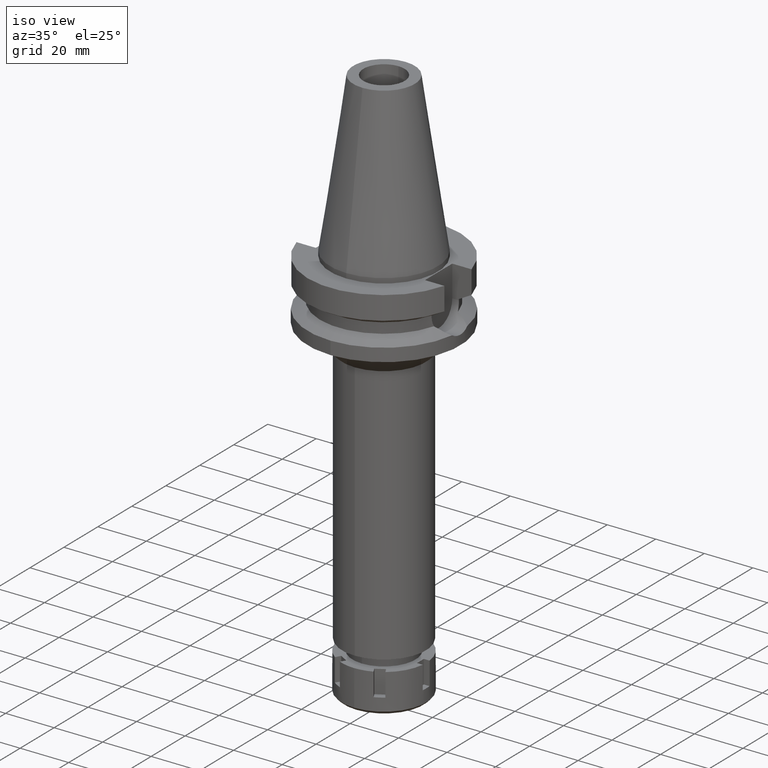
[diagram: clean part render]
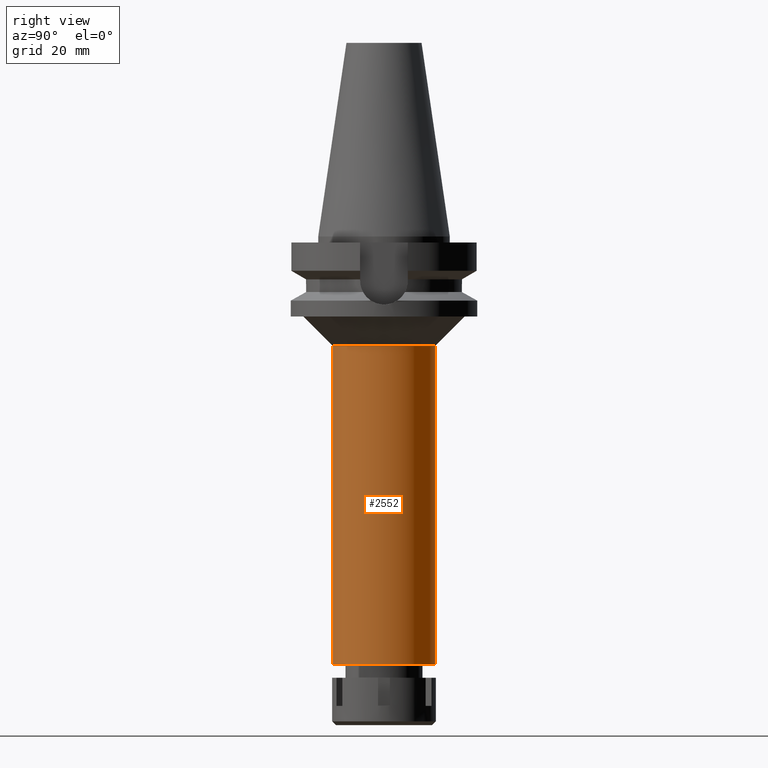
[diagram: tour spotlight — one face highlighted and labeled with its STEP entity id]
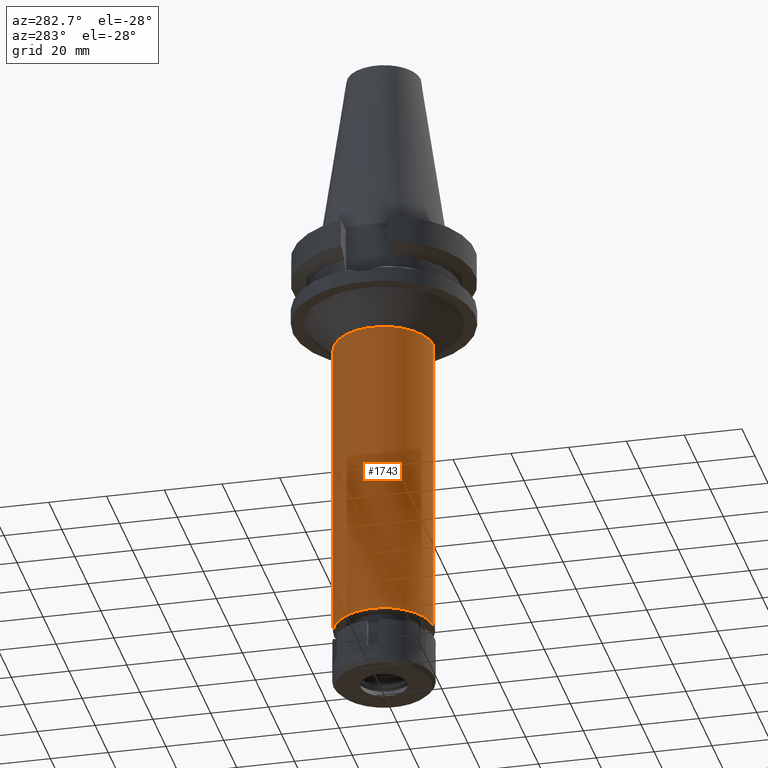
[diagram: tour spotlight — one face highlighted and labeled with its STEP entity id]
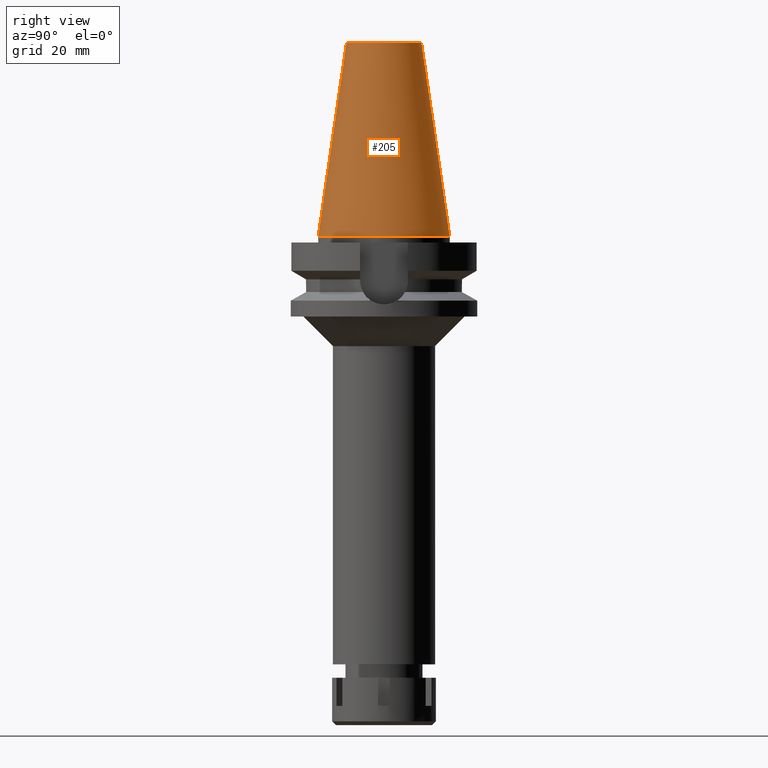
[diagram: tour spotlight — one face highlighted and labeled with its STEP entity id]
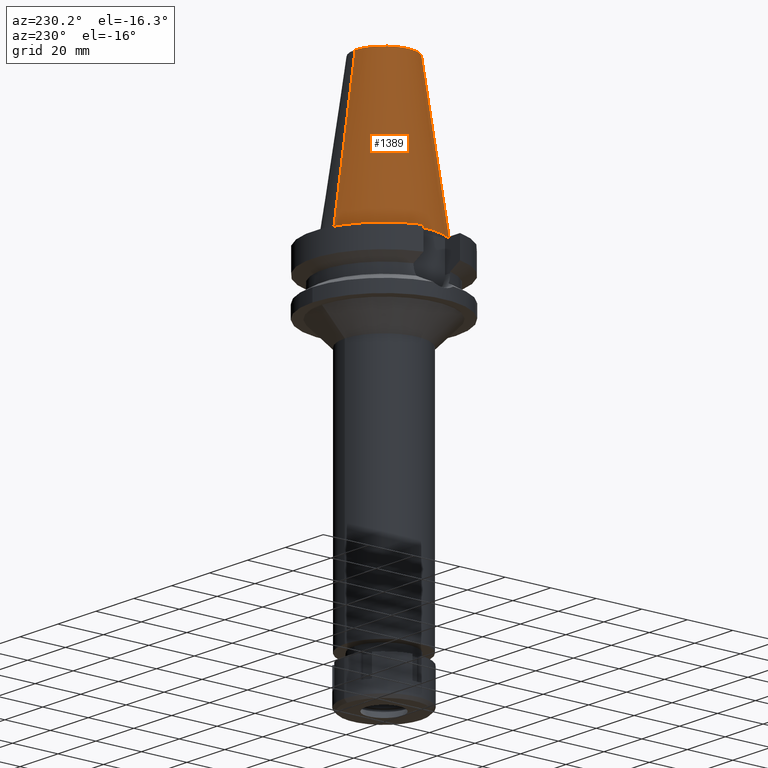
[diagram: tour spotlight — one face highlighted and labeled with its STEP entity id]
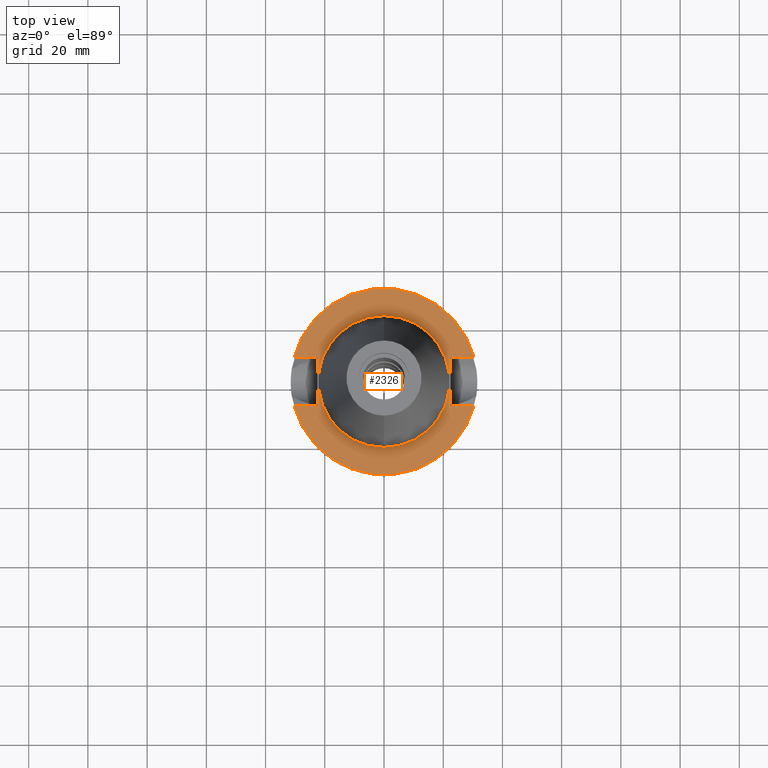
[diagram: tour spotlight — one face highlighted and labeled with its STEP entity id]
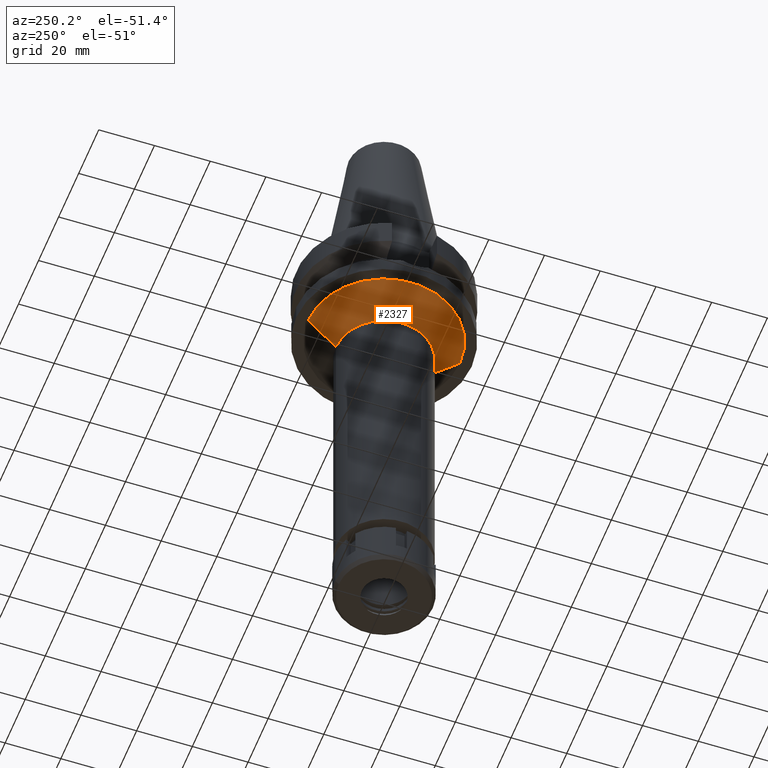
[diagram: tour spotlight — one face highlighted and labeled with its STEP entity id]
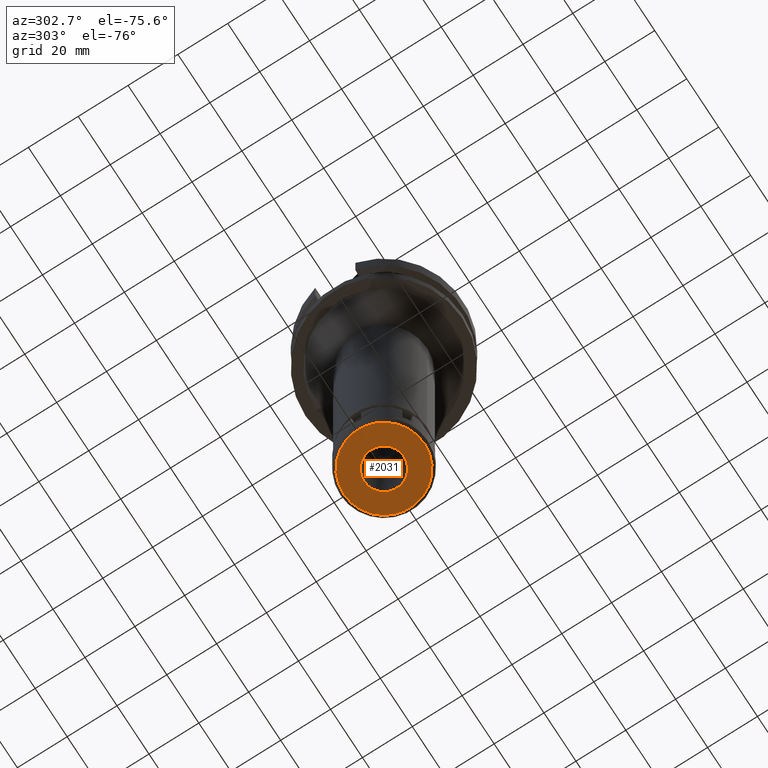
[diagram: tour spotlight — one face highlighted and labeled with its STEP entity id]
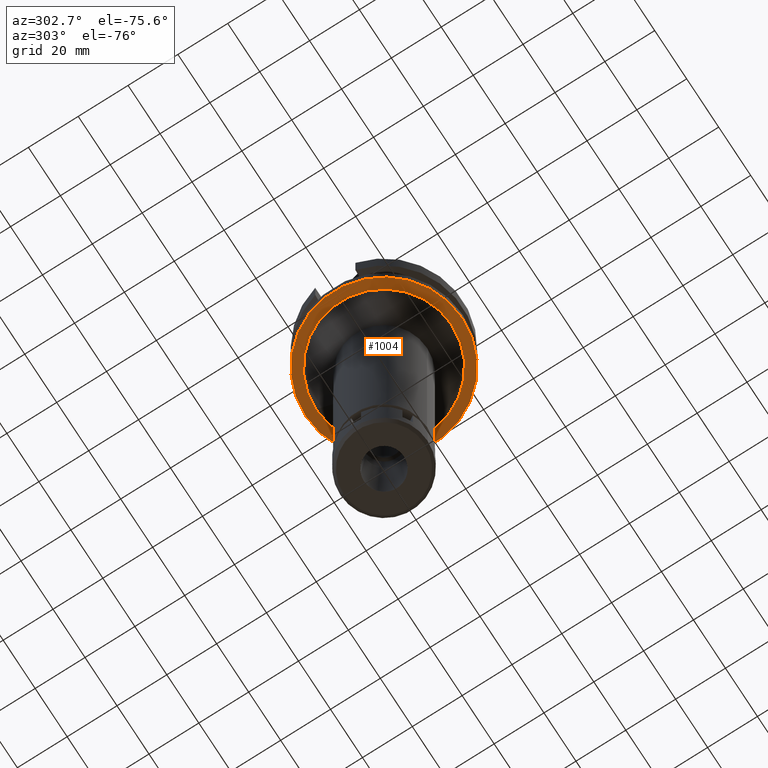
[diagram: tour spotlight — one face highlighted and labeled with its STEP entity id]
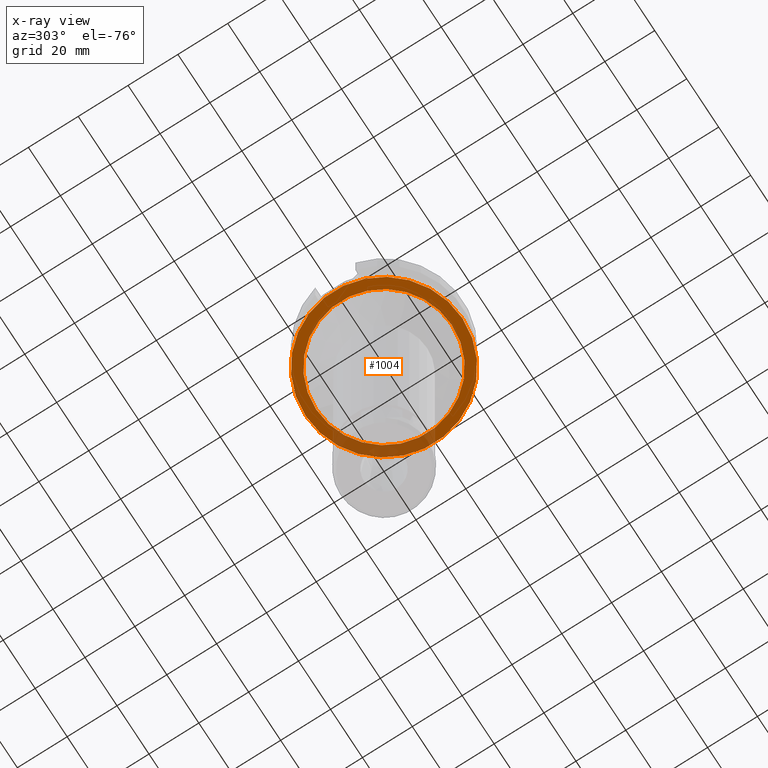
[diagram: x-ray of the same camera — body ghosted, this tour face saturated]
A machine part: a face-by-face anatomy tour. The part has 93 B-rep faces; the first image is the clean iso view, then the 8 largest visible faces are spotlighted one at a time (largest first), each with its STEP entity span.

Face 1 — right view, entity #2552. In plain terms, the highlighted cylindrical surface (partial cylindrical patch) has radius 17.25 mm, axis along (0, 0, -1).
Definition (entity closure, byte-faithful):
#116 = CARTESIAN_POINT ( 'NONE',  ( 0.0000000000000000000, 0.0000000000000000000, -37.00000000000000000 ) ) ;
#132 = CARTESIAN_POINT ( 'NONE',  ( 0.0000000000000000000, 2.161746529854999700E-14, -144.5000000000000000 ) ) ;
#201 = CARTESIAN_POINT ( 'NONE',  ( 0.0000000000000000000, 17.25000000000000000, -144.5000000000000000 ) ) ;
#311 = CARTESIAN_POINT ( 'NONE',  ( 0.0000000000000000000, -17.25000000000000000, -144.5000000000000000 ) ) ;
#648 = LINE ( 'NONE', #3131, #2006 ) ;
#687 = DIRECTION ( 'NONE',  ( 0.0000000000000000000, 1.000000000000000000, 0.0000000000000000000 ) ) ;
#688 = ORIENTED_EDGE ( 'NONE', *, *, #1670, .T. ) ;
#786 = DIRECTION ( 'NONE',  ( 0.0000000000000000000, -1.000000000000000000, 0.0000000000000000000 ) ) ;
#942 = CIRCLE ( 'NONE', #1130, 17.25000000000000000 ) ;
#1051 = DIRECTION ( 'NONE',  ( 0.0000000000000000000, 0.0000000000000000000, -1.000000000000000000 ) ) ;
#1057 = EDGE_CURVE ( 'NONE', #3439, #2887, #942, .T. ) ;
#1130 = AXIS2_PLACEMENT_3D ( 'NONE', #116, #2855, #687 ) ;
#1349 = CIRCLE ( 'NONE', #2588, 17.25000000000000000 ) ;
#1455 = LINE ( 'NONE', #3139, #1885 ) ;
#1477 = DIRECTION ( 'NONE',  ( 0.0000000000000000000, 0.0000000000000000000, -1.000000000000000000 ) ) ;
#1548 = ORIENTED_EDGE ( 'NONE', *, *, #1581, .T. ) ;
#1581 = EDGE_CURVE ( 'NONE', #2887, #2158, #648, .T. ) ;
#1586 = ORIENTED_EDGE ( 'NONE', *, *, #2103, .F. ) ;
#1670 = EDGE_CURVE ( 'NONE', #2158, #1895, #1349, .T. ) ;
#1885 = VECTOR ( 'NONE', #2073, 1000.000000000000000 ) ;
#1895 = VERTEX_POINT ( 'NONE', #201 ) ;
#1938 = CARTESIAN_POINT ( 'NONE',  ( 0.0000000000000000000, 2.161746529854999700E-14, 76.52000000000001023 ) ) ;
#2006 = VECTOR ( 'NONE', #1477, 1000.000000000000000 ) ;
#2038 = DIRECTION ( 'NONE',  ( 0.0000000000000000000, 0.0000000000000000000, 1.000000000000000000 ) ) ;
#2053 = AXIS2_PLACEMENT_3D ( 'NONE', #1938, #1051, #786 ) ;
#2073 = DIRECTION ( 'NONE',  ( 0.0000000000000000000, 0.0000000000000000000, -1.000000000000000000 ) ) ;
#2103 = EDGE_CURVE ( 'NONE', #3439, #1895, #1455, .T. ) ;
#2158 = VERTEX_POINT ( 'NONE', #311 ) ;
#2184 = CYLINDRICAL_SURFACE ( 'NONE', #2053, 17.25000000000000000 ) ;
#2352 = DIRECTION ( 'NONE',  ( 0.0000000000000000000, -1.000000000000000000, 0.0000000000000000000 ) ) ;
#2552 = ADVANCED_FACE ( 'NONE', ( #3033 ), #2184, .T. ) ;
#2588 = AXIS2_PLACEMENT_3D ( 'NONE', #132, #2038, #2352 ) ;
#2627 = CARTESIAN_POINT ( 'NONE',  ( 0.0000000000000000000, -17.25000000000000000, -37.00000000000000000 ) ) ;
#2686 = EDGE_LOOP ( 'NONE', ( #2702, #1548, #688, #1586 ) ) ;
#2702 = ORIENTED_EDGE ( 'NONE', *, *, #1057, .T. ) ;
#2855 = DIRECTION ( 'NONE',  ( 0.0000000000000000000, 0.0000000000000000000, -1.000000000000000000 ) ) ;
#2887 = VERTEX_POINT ( 'NONE', #2627 ) ;
#3033 = FACE_OUTER_BOUND ( 'NONE', #2686, .T. ) ;
#3131 = CARTESIAN_POINT ( 'NONE',  ( 0.0000000000000000000, -17.25000000000000000, -37.00000000000000000 ) ) ;
#3139 = CARTESIAN_POINT ( 'NONE',  ( 0.0000000000000000000, 17.25000000000000000, -37.00000000000000000 ) ) ;
#3388 = CARTESIAN_POINT ( 'NONE',  ( 0.0000000000000000000, 17.25000000000000000, -37.00000000000000000 ) ) ;
#3439 = VERTEX_POINT ( 'NONE', #3388 ) ;

Face 2 — auxiliary view, entity #1743. In plain terms, the highlighted cylindrical surface (partial cylindrical patch) has radius 17.25 mm, axis along (0, 0, -1).
Definition (entity closure, byte-faithful):
#201 = CARTESIAN_POINT ( 'NONE',  ( 0.0000000000000000000, 17.25000000000000000, -144.5000000000000000 ) ) ;
#311 = CARTESIAN_POINT ( 'NONE',  ( 0.0000000000000000000, -17.25000000000000000, -144.5000000000000000 ) ) ;
#430 = DIRECTION ( 'NONE',  ( 0.0000000000000000000, 0.0000000000000000000, -1.000000000000000000 ) ) ;
#525 = CIRCLE ( 'NONE', #579, 17.25000000000000000 ) ;
#533 = ORIENTED_EDGE ( 'NONE', *, *, #1581, .F. ) ;
#579 = AXIS2_PLACEMENT_3D ( 'NONE', #2624, #1002, #1873 ) ;
#640 = ORIENTED_EDGE ( 'NONE', *, *, #915, .T. ) ;
#648 = LINE ( 'NONE', #3131, #2006 ) ;
#842 = AXIS2_PLACEMENT_3D ( 'NONE', #2606, #1283, #3227 ) ;
#915 = EDGE_CURVE ( 'NONE', #2887, #3439, #3385, .T. ) ;
#1002 = DIRECTION ( 'NONE',  ( 0.0000000000000000000, 0.0000000000000000000, 1.000000000000000000 ) ) ;
#1193 = EDGE_LOOP ( 'NONE', ( #1319, #533, #640, #2306 ) ) ;
#1283 = DIRECTION ( 'NONE',  ( 0.0000000000000000000, 0.0000000000000000000, -1.000000000000000000 ) ) ;
#1319 = ORIENTED_EDGE ( 'NONE', *, *, #3650, .T. ) ;
#1455 = LINE ( 'NONE', #3139, #1885 ) ;
#1477 = DIRECTION ( 'NONE',  ( 0.0000000000000000000, 0.0000000000000000000, -1.000000000000000000 ) ) ;
#1581 = EDGE_CURVE ( 'NONE', #2887, #2158, #648, .T. ) ;
#1743 = ADVANCED_FACE ( 'NONE', ( #2445 ), #2713, .T. ) ;
#1847 = CARTESIAN_POINT ( 'NONE',  ( 0.0000000000000000000, 2.161746529854999700E-14, 76.52000000000001023 ) ) ;
#1873 = DIRECTION ( 'NONE',  ( 0.0000000000000000000, 1.000000000000000000, 0.0000000000000000000 ) ) ;
#1885 = VECTOR ( 'NONE', #2073, 1000.000000000000000 ) ;
#1895 = VERTEX_POINT ( 'NONE', #201 ) ;
#2006 = VECTOR ( 'NONE', #1477, 1000.000000000000000 ) ;
#2073 = DIRECTION ( 'NONE',  ( 0.0000000000000000000, 0.0000000000000000000, -1.000000000000000000 ) ) ;
#2103 = EDGE_CURVE ( 'NONE', #3439, #1895, #1455, .T. ) ;
#2158 = VERTEX_POINT ( 'NONE', #311 ) ;
#2306 = ORIENTED_EDGE ( 'NONE', *, *, #2103, .T. ) ;
#2445 = FACE_OUTER_BOUND ( 'NONE', #1193, .T. ) ;
#2606 = CARTESIAN_POINT ( 'NONE',  ( 0.0000000000000000000, 0.0000000000000000000, -37.00000000000000000 ) ) ;
#2624 = CARTESIAN_POINT ( 'NONE',  ( 0.0000000000000000000, 2.161746529854999700E-14, -144.5000000000000000 ) ) ;
#2627 = CARTESIAN_POINT ( 'NONE',  ( 0.0000000000000000000, -17.25000000000000000, -37.00000000000000000 ) ) ;
#2646 = AXIS2_PLACEMENT_3D ( 'NONE', #1847, #430, #2727 ) ;
#2713 = CYLINDRICAL_SURFACE ( 'NONE', #2646, 17.25000000000000000 ) ;
#2727 = DIRECTION ( 'NONE',  ( 0.0000000000000000000, -1.000000000000000000, 0.0000000000000000000 ) ) ;
#2887 = VERTEX_POINT ( 'NONE', #2627 ) ;
#3131 = CARTESIAN_POINT ( 'NONE',  ( 0.0000000000000000000, -17.25000000000000000, -37.00000000000000000 ) ) ;
#3139 = CARTESIAN_POINT ( 'NONE',  ( 0.0000000000000000000, 17.25000000000000000, -37.00000000000000000 ) ) ;
#3227 = DIRECTION ( 'NONE',  ( 0.0000000000000000000, -1.000000000000000000, 0.0000000000000000000 ) ) ;
#3385 = CIRCLE ( 'NONE', #842, 17.25000000000000000 ) ;
#3388 = CARTESIAN_POINT ( 'NONE',  ( 0.0000000000000000000, 17.25000000000000000, -37.00000000000000000 ) ) ;
#3439 = VERTEX_POINT ( 'NONE', #3388 ) ;
#3650 = EDGE_CURVE ( 'NONE', #1895, #2158, #525, .T. ) ;

Face 3 — right view, entity #205. In plain terms, the highlighted conical surface has half-angle 8.297 deg.
Definition (entity closure, byte-faithful):
#161 = VERTEX_POINT ( 'NONE', #2025 ) ;
#205 = ADVANCED_FACE ( 'NONE', ( #827 ), #2952, .T. ) ;
#427 = EDGE_CURVE ( 'NONE', #578, #645, #1261, .T. ) ;
#431 = AXIS2_PLACEMENT_3D ( 'NONE', #2304, #1118, #2532 ) ;
#545 = DIRECTION ( 'NONE',  ( 0.0000000000000000000, 0.1443043893539925626, -0.9895333461855498891 ) ) ;
#578 = VERTEX_POINT ( 'NONE', #719 ) ;
#631 = AXIS2_PLACEMENT_3D ( 'NONE', #1012, #2145, #3253 ) ;
#645 = VERTEX_POINT ( 'NONE', #1769 ) ;
#676 = AXIS2_PLACEMENT_3D ( 'NONE', #3558, #2108, #1507 ) ;
#719 = CARTESIAN_POINT ( 'NONE',  ( 0.0000000000000000000, -12.68766899429999917, 65.40000000000000568 ) ) ;
#809 = EDGE_CURVE ( 'NONE', #1115, #645, #2968, .T. ) ;
#827 = FACE_OUTER_BOUND ( 'NONE', #2568, .T. ) ;
#1012 = CARTESIAN_POINT ( 'NONE',  ( 0.0000000000000000000, 1.625106302469000024E-14, 65.40000000000000568 ) ) ;
#1115 = VERTEX_POINT ( 'NONE', #3224 ) ;
#1118 = DIRECTION ( 'NONE',  ( 0.0000000000000000000, 0.0000000000000000000, -1.000000000000000000 ) ) ;
#1139 = LINE ( 'NONE', #1406, #2187 ) ;
#1223 = ORIENTED_EDGE ( 'NONE', *, *, #427, .T. ) ;
#1261 = LINE ( 'NONE', #1556, #3371 ) ;
#1406 = CARTESIAN_POINT ( 'NONE',  ( 0.0000000000000000000, 12.68766899429999917, 65.40000000000000568 ) ) ;
#1507 = DIRECTION ( 'NONE',  ( 0.0000000000000000000, 1.000000000000000000, 0.0000000000000000000 ) ) ;
#1556 = CARTESIAN_POINT ( 'NONE',  ( 0.0000000000000000000, -12.68766899429999917, 65.40000000000000568 ) ) ;
#1566 = ORIENTED_EDGE ( 'NONE', *, *, #809, .F. ) ;
#1769 = CARTESIAN_POINT ( 'NONE',  ( 0.0000000000000000000, -22.22500000000000142, 2.842170943039999687E-14 ) ) ;
#1950 = ORIENTED_EDGE ( 'NONE', *, *, #2215, .F. ) ;
#2025 = CARTESIAN_POINT ( 'NONE',  ( 0.0000000000000000000, 12.68766899429999917, 65.40000000000000568 ) ) ;
#2108 = DIRECTION ( 'NONE',  ( 0.0000000000000000000, 0.0000000000000000000, -1.000000000000000000 ) ) ;
#2145 = DIRECTION ( 'NONE',  ( 0.0000000000000000000, 0.0000000000000000000, -1.000000000000000000 ) ) ;
#2187 = VECTOR ( 'NONE', #545, 1000.000000000000114 ) ;
#2215 = EDGE_CURVE ( 'NONE', #161, #1115, #1139, .T. ) ;
#2304 = CARTESIAN_POINT ( 'NONE',  ( 0.0000000000000000000, 1.625106302469000024E-14, 32.70000000000000284 ) ) ;
#2532 = DIRECTION ( 'NONE',  ( 0.0000000000000000000, -1.000000000000000000, 0.0000000000000000000 ) ) ;
#2568 = EDGE_LOOP ( 'NONE', ( #3383, #1223, #1566, #1950 ) ) ;
#2665 = EDGE_CURVE ( 'NONE', #161, #578, #3094, .T. ) ;
#2677 = DIRECTION ( 'NONE',  ( 0.0000000000000000000, -0.1443043893539925626, -0.9895333461855498891 ) ) ;
#2952 = CONICAL_SURFACE ( 'NONE', #431, 17.45633449714999941, 0.1448099680379422438 ) ;
#2968 = CIRCLE ( 'NONE', #676, 22.22500000000000142 ) ;
#3094 = CIRCLE ( 'NONE', #631, 12.68766899429999917 ) ;
#3224 = CARTESIAN_POINT ( 'NONE',  ( 0.0000000000000000000, 22.22500000000000142, 8.526512829120999020E-14 ) ) ;
#3253 = DIRECTION ( 'NONE',  ( 0.0000000000000000000, 1.000000000000000000, 0.0000000000000000000 ) ) ;
#3371 = VECTOR ( 'NONE', #2677, 1000.000000000000114 ) ;
#3383 = ORIENTED_EDGE ( 'NONE', *, *, #2665, .T. ) ;
#3558 = CARTESIAN_POINT ( 'NONE',  ( 0.0000000000000000000, 1.625106302469000024E-14, 2.842170943039999687E-14 ) ) ;

Face 4 — auxiliary view, entity #1389. In plain terms, the highlighted conical surface has half-angle 8.297 deg.
Definition (entity closure, byte-faithful):
#22 = CARTESIAN_POINT ( 'NONE',  ( 0.0000000000000000000, 1.625106302469000024E-14, 32.70000000000000284 ) ) ;
#161 = VERTEX_POINT ( 'NONE', #2025 ) ;
#292 = FACE_OUTER_BOUND ( 'NONE', #664, .T. ) ;
#427 = EDGE_CURVE ( 'NONE', #578, #645, #1261, .T. ) ;
#540 = ORIENTED_EDGE ( 'NONE', *, *, #2008, .F. ) ;
#545 = DIRECTION ( 'NONE',  ( 0.0000000000000000000, 0.1443043893539925626, -0.9895333461855498891 ) ) ;
#548 = EDGE_CURVE ( 'NONE', #578, #161, #1985, .T. ) ;
#578 = VERTEX_POINT ( 'NONE', #719 ) ;
#645 = VERTEX_POINT ( 'NONE', #1769 ) ;
#664 = EDGE_LOOP ( 'NONE', ( #540, #1619, #1878, #1526 ) ) ;
#719 = CARTESIAN_POINT ( 'NONE',  ( 0.0000000000000000000, -12.68766899429999917, 65.40000000000000568 ) ) ;
#762 = AXIS2_PLACEMENT_3D ( 'NONE', #2780, #1377, #3652 ) ;
#1115 = VERTEX_POINT ( 'NONE', #3224 ) ;
#1139 = LINE ( 'NONE', #1406, #2187 ) ;
#1246 = AXIS2_PLACEMENT_3D ( 'NONE', #22, #1960, #1421 ) ;
#1261 = LINE ( 'NONE', #1556, #3371 ) ;
#1377 = DIRECTION ( 'NONE',  ( 0.0000000000000000000, 0.0000000000000000000, -1.000000000000000000 ) ) ;
#1389 = ADVANCED_FACE ( 'NONE', ( #292 ), #2827, .T. ) ;
#1406 = CARTESIAN_POINT ( 'NONE',  ( 0.0000000000000000000, 12.68766899429999917, 65.40000000000000568 ) ) ;
#1421 = DIRECTION ( 'NONE',  ( 0.0000000000000000000, -1.000000000000000000, 0.0000000000000000000 ) ) ;
#1526 = ORIENTED_EDGE ( 'NONE', *, *, #2215, .T. ) ;
#1556 = CARTESIAN_POINT ( 'NONE',  ( 0.0000000000000000000, -12.68766899429999917, 65.40000000000000568 ) ) ;
#1619 = ORIENTED_EDGE ( 'NONE', *, *, #427, .F. ) ;
#1769 = CARTESIAN_POINT ( 'NONE',  ( 0.0000000000000000000, -22.22500000000000142, 2.842170943039999687E-14 ) ) ;
#1878 = ORIENTED_EDGE ( 'NONE', *, *, #548, .T. ) ;
#1886 = CARTESIAN_POINT ( 'NONE',  ( 0.0000000000000000000, 1.625106302469000024E-14, 65.40000000000000568 ) ) ;
#1960 = DIRECTION ( 'NONE',  ( 0.0000000000000000000, 0.0000000000000000000, -1.000000000000000000 ) ) ;
#1985 = CIRCLE ( 'NONE', #2508, 12.68766899429999917 ) ;
#2008 = EDGE_CURVE ( 'NONE', #645, #1115, #2365, .T. ) ;
#2025 = CARTESIAN_POINT ( 'NONE',  ( 0.0000000000000000000, 12.68766899429999917, 65.40000000000000568 ) ) ;
#2187 = VECTOR ( 'NONE', #545, 1000.000000000000114 ) ;
#2215 = EDGE_CURVE ( 'NONE', #161, #1115, #1139, .T. ) ;
#2365 = CIRCLE ( 'NONE', #762, 22.22500000000000142 ) ;
#2508 = AXIS2_PLACEMENT_3D ( 'NONE', #1886, #3006, #3586 ) ;
#2677 = DIRECTION ( 'NONE',  ( 0.0000000000000000000, -0.1443043893539925626, -0.9895333461855498891 ) ) ;
#2780 = CARTESIAN_POINT ( 'NONE',  ( 0.0000000000000000000, 1.625106302469000024E-14, 2.842170943039999687E-14 ) ) ;
#2827 = CONICAL_SURFACE ( 'NONE', #1246, 17.45633449714999941, 0.1448099680379422438 ) ;
#3006 = DIRECTION ( 'NONE',  ( 0.0000000000000000000, 0.0000000000000000000, -1.000000000000000000 ) ) ;
#3224 = CARTESIAN_POINT ( 'NONE',  ( 0.0000000000000000000, 22.22500000000000142, 8.526512829120999020E-14 ) ) ;
#3371 = VECTOR ( 'NONE', #2677, 1000.000000000000114 ) ;
#3586 = DIRECTION ( 'NONE',  ( 0.0000000000000000000, -1.000000000000000000, 0.0000000000000000000 ) ) ;
#3652 = DIRECTION ( 'NONE',  ( 0.0000000000000000000, -1.000000000000000000, 0.0000000000000000000 ) ) ;

Face 5 — top view, entity #2326. In plain terms, the highlighted planar face has unit normal (0, 0, -1).
Definition (entity closure, byte-faithful):
#141 = DIRECTION ( 'NONE',  ( 0.0000000000000000000, 0.0000000000000000000, -1.000000000000000000 ) ) ;
#258 = VERTEX_POINT ( 'NONE', #1978 ) ;
#288 = DIRECTION ( 'NONE',  ( 0.0000000000000000000, 0.0000000000000000000, 1.000000000000000000 ) ) ;
#342 = VERTEX_POINT ( 'NONE', #1798 ) ;
#409 = AXIS2_PLACEMENT_3D ( 'NONE', #1023, #141, #1302 ) ;
#458 = AXIS2_PLACEMENT_3D ( 'NONE', #3085, #566, #1695 ) ;
#535 = EDGE_CURVE ( 'NONE', #2063, #1842, #2148, .T. ) ;
#566 = DIRECTION ( 'NONE',  ( 0.0000000000000000000, 0.0000000000000000000, -1.000000000000000000 ) ) ;
#625 = EDGE_LOOP ( 'NONE', ( #798, #2450, #1765, #3011, #737, #1966, #2389, #1177 ) ) ;
#630 = DIRECTION ( 'NONE',  ( 0.0000000000000000000, 1.000000000000000000, 0.0000000000000000000 ) ) ;
#634 = CIRCLE ( 'NONE', #458, 31.50000000000000000 ) ;
#679 = CARTESIAN_POINT ( 'NONE',  ( -22.50000000000000000, 8.050000000000000711, -2.000000000000000000 ) ) ;
#691 = VECTOR ( 'NONE', #3342, 1000.000000000000000 ) ;
#698 = CIRCLE ( 'NONE', #409, 31.50000000000000000 ) ;
#702 = EDGE_CURVE ( 'NONE', #1427, #3208, #1254, .T. ) ;
#713 = CARTESIAN_POINT ( 'NONE',  ( 0.0000000000000000000, 22.22500000000000142, -2.000000000000000000 ) ) ;
#737 = ORIENTED_EDGE ( 'NONE', *, *, #1281, .T. ) ;
#745 = VECTOR ( 'NONE', #770, 1000.000000000000000 ) ;
#748 = VERTEX_POINT ( 'NONE', #3248 ) ;
#770 = DIRECTION ( 'NONE',  ( -1.000000000000000000, 3.550916904668000126E-14, 0.0000000000000000000 ) ) ;
#795 = LINE ( 'NONE', #1926, #691 ) ;
#798 = ORIENTED_EDGE ( 'NONE', *, *, #2698, .T. ) ;
#828 = CARTESIAN_POINT ( 'NONE',  ( 0.0000000000000000000, 1.200153863163999924E-14, -2.000000000000000000 ) ) ;
#875 = CARTESIAN_POINT ( 'NONE',  ( 22.50000000000000000, -8.050000000000000711, -2.000000000000000000 ) ) ;
#896 = EDGE_LOOP ( 'NONE', ( #2991, #1332 ) ) ;
#936 = VECTOR ( 'NONE', #1509, 1000.000000000000000 ) ;
#951 = LINE ( 'NONE', #679, #936 ) ;
#1017 = LINE ( 'NONE', #2460, #2658 ) ;
#1023 = CARTESIAN_POINT ( 'NONE',  ( 0.0000000000000000000, 2.161746529854999700E-14, -2.000000000000000000 ) ) ;
#1093 = VECTOR ( 'NONE', #2706, 1000.000000000000000 ) ;
#1122 = CIRCLE ( 'NONE', #1943, 22.22500000000000142 ) ;
#1177 = ORIENTED_EDGE ( 'NONE', *, *, #702, .F. ) ;
#1188 = CARTESIAN_POINT ( 'NONE',  ( 0.0000000000000000000, 2.161746529854999700E-14, -2.000000000000000000 ) ) ;
#1254 = LINE ( 'NONE', #2124, #1093 ) ;
#1281 = EDGE_CURVE ( 'NONE', #1299, #258, #1017, .T. ) ;
#1299 = VERTEX_POINT ( 'NONE', #3569 ) ;
#1302 = DIRECTION ( 'NONE',  ( 0.0000000000000000000, 1.000000000000000000, 0.0000000000000000000 ) ) ;
#1332 = ORIENTED_EDGE ( 'NONE', *, *, #2877, .F. ) ;
#1385 = FACE_OUTER_BOUND ( 'NONE', #625, .T. ) ;
#1416 = DIRECTION ( 'NONE',  ( 0.0000000000000000000, -1.000000000000000000, 0.0000000000000000000 ) ) ;
#1427 = VERTEX_POINT ( 'NONE', #1723 ) ;
#1490 = CARTESIAN_POINT ( 'NONE',  ( -30.45402272279000044, 8.050000000000000711, -2.000000000000000000 ) ) ;
#1509 = DIRECTION ( 'NONE',  ( -1.000000000000000000, -3.550916904668000126E-14, 0.0000000000000000000 ) ) ;
#1593 = DIRECTION ( 'NONE',  ( 1.000000000000000000, 3.573249715389999860E-14, 0.0000000000000000000 ) ) ;
#1648 = CARTESIAN_POINT ( 'NONE',  ( 22.50000000000000000, -8.050000000000000711, -2.000000000000000000 ) ) ;
#1693 = AXIS2_PLACEMENT_3D ( 'NONE', #828, #1964, #3076 ) ;
#1695 = DIRECTION ( 'NONE',  ( 0.0000000000000000000, -1.000000000000000000, 0.0000000000000000000 ) ) ;
#1715 = EDGE_CURVE ( 'NONE', #3082, #342, #1122, .T. ) ;
#1723 = CARTESIAN_POINT ( 'NONE',  ( -22.50000000000000000, -8.050000000000000711, -2.000000000000000000 ) ) ;
#1765 = ORIENTED_EDGE ( 'NONE', *, *, #535, .F. ) ;
#1798 = CARTESIAN_POINT ( 'NONE',  ( 0.0000000000000000000, -22.22500000000000142, -2.000000000000000000 ) ) ;
#1842 = VERTEX_POINT ( 'NONE', #3545 ) ;
#1917 = CARTESIAN_POINT ( 'NONE',  ( -22.50000000000000000, -8.050000000000000711, -2.000000000000000000 ) ) ;
#1926 = CARTESIAN_POINT ( 'NONE',  ( 22.50000000000000000, 8.050000000000000711, -2.000000000000000000 ) ) ;
#1943 = AXIS2_PLACEMENT_3D ( 'NONE', #1188, #3143, #630 ) ;
#1949 = CARTESIAN_POINT ( 'NONE',  ( -22.50000000000000000, 8.050000000000000711, -2.000000000000000000 ) ) ;
#1964 = DIRECTION ( 'NONE',  ( 0.0000000000000000000, 0.0000000000000000000, -1.000000000000000000 ) ) ;
#1966 = ORIENTED_EDGE ( 'NONE', *, *, #3596, .F. ) ;
#1978 = CARTESIAN_POINT ( 'NONE',  ( 30.45402272279000044, 8.050000000000000711, -2.000000000000000000 ) ) ;
#2055 = EDGE_CURVE ( 'NONE', #3208, #2126, #951, .T. ) ;
#2063 = VERTEX_POINT ( 'NONE', #875 ) ;
#2124 = CARTESIAN_POINT ( 'NONE',  ( -22.50000000000000000, -8.050000000000000711, -2.000000000000000000 ) ) ;
#2126 = VERTEX_POINT ( 'NONE', #1490 ) ;
#2148 = LINE ( 'NONE', #1648, #3368 ) ;
#2233 = AXIS2_PLACEMENT_3D ( 'NONE', #2813, #288, #1416 ) ;
#2251 = PLANE ( 'NONE',  #1693 ) ;
#2293 = EDGE_CURVE ( 'NONE', #1299, #2063, #795, .T. ) ;
#2326 = ADVANCED_FACE ( 'NONE', ( #1385, #3364 ), #2251, .F. ) ;
#2389 = ORIENTED_EDGE ( 'NONE', *, *, #2055, .F. ) ;
#2450 = ORIENTED_EDGE ( 'NONE', *, *, #2875, .F. ) ;
#2460 = CARTESIAN_POINT ( 'NONE',  ( 22.50000000000000000, 8.050000000000000711, -2.000000000000000000 ) ) ;
#2464 = CIRCLE ( 'NONE', #2233, 22.22500000000000142 ) ;
#2658 = VECTOR ( 'NONE', #3609, 1000.000000000000000 ) ;
#2698 = EDGE_CURVE ( 'NONE', #1427, #748, #3314, .T. ) ;
#2706 = DIRECTION ( 'NONE',  ( 0.0000000000000000000, 1.000000000000000000, 0.0000000000000000000 ) ) ;
#2813 = CARTESIAN_POINT ( 'NONE',  ( 0.0000000000000000000, 2.161746529854999700E-14, -2.000000000000000000 ) ) ;
#2875 = EDGE_CURVE ( 'NONE', #1842, #748, #634, .T. ) ;
#2877 = EDGE_CURVE ( 'NONE', #342, #3082, #2464, .T. ) ;
#2991 = ORIENTED_EDGE ( 'NONE', *, *, #1715, .F. ) ;
#3011 = ORIENTED_EDGE ( 'NONE', *, *, #2293, .F. ) ;
#3076 = DIRECTION ( 'NONE',  ( 0.0000000000000000000, -1.000000000000000000, 0.0000000000000000000 ) ) ;
#3082 = VERTEX_POINT ( 'NONE', #713 ) ;
#3085 = CARTESIAN_POINT ( 'NONE',  ( 0.0000000000000000000, 2.161746529854999700E-14, -2.000000000000000000 ) ) ;
#3143 = DIRECTION ( 'NONE',  ( 0.0000000000000000000, 0.0000000000000000000, 1.000000000000000000 ) ) ;
#3208 = VERTEX_POINT ( 'NONE', #1949 ) ;
#3248 = CARTESIAN_POINT ( 'NONE',  ( -30.45402272279000044, -8.050000000000000711, -2.000000000000000000 ) ) ;
#3314 = LINE ( 'NONE', #1917, #745 ) ;
#3342 = DIRECTION ( 'NONE',  ( 0.0000000000000000000, -1.000000000000000000, 0.0000000000000000000 ) ) ;
#3364 = FACE_BOUND ( 'NONE', #896, .T. ) ;
#3368 = VECTOR ( 'NONE', #1593, 1000.000000000000000 ) ;
#3545 = CARTESIAN_POINT ( 'NONE',  ( 30.45402272279000044, -8.050000000000000711, -2.000000000000000000 ) ) ;
#3569 = CARTESIAN_POINT ( 'NONE',  ( 22.50000000000000000, 8.050000000000000711, -2.000000000000000000 ) ) ;
#3596 = EDGE_CURVE ( 'NONE', #2126, #258, #698, .T. ) ;
#3609 = DIRECTION ( 'NONE',  ( 1.000000000000000000, -3.506251283225999947E-14, 0.0000000000000000000 ) ) ;

Face 6 — auxiliary view, entity #2327. In plain terms, the highlighted conical surface has half-angle 45 deg.
Definition (entity closure, byte-faithful):
#46 = VECTOR ( 'NONE', #343, 1000.000000000000114 ) ;
#119 = ORIENTED_EDGE ( 'NONE', *, *, #3468, .F. ) ;
#276 = DIRECTION ( 'NONE',  ( 0.0000000000000000000, 0.0000000000000000000, 1.000000000000000000 ) ) ;
#343 = DIRECTION ( 'NONE',  ( 0.0000000000000000000, 0.7071067811865474617, -0.7071067811865474617 ) ) ;
#435 = EDGE_CURVE ( 'NONE', #2954, #3439, #2337, .T. ) ;
#490 = VERTEX_POINT ( 'NONE', #1327 ) ;
#560 = FACE_OUTER_BOUND ( 'NONE', #1404, .T. ) ;
#842 = AXIS2_PLACEMENT_3D ( 'NONE', #2606, #1283, #3227 ) ;
#856 = AXIS2_PLACEMENT_3D ( 'NONE', #3237, #1773, #2406 ) ;
#915 = EDGE_CURVE ( 'NONE', #2887, #3439, #3385, .T. ) ;
#971 = CARTESIAN_POINT ( 'NONE',  ( 0.0000000000000000000, 27.25000000000000000, -27.00000000000000000 ) ) ;
#1279 = CONICAL_SURFACE ( 'NONE', #3041, 22.25000000000000000, 0.7853981633972997312 ) ;
#1283 = DIRECTION ( 'NONE',  ( 0.0000000000000000000, 0.0000000000000000000, -1.000000000000000000 ) ) ;
#1327 = CARTESIAN_POINT ( 'NONE',  ( 0.0000000000000000000, -27.25000000000000000, -27.00000000000000000 ) ) ;
#1404 = EDGE_LOOP ( 'NONE', ( #3524, #119, #2381, #1844 ) ) ;
#1688 = CARTESIAN_POINT ( 'NONE',  ( 0.0000000000000000000, 0.0000000000000000000, -32.00000000000000000 ) ) ;
#1717 = LINE ( 'NONE', #2830, #46 ) ;
#1773 = DIRECTION ( 'NONE',  ( 0.0000000000000000000, 0.0000000000000000000, -1.000000000000000000 ) ) ;
#1844 = ORIENTED_EDGE ( 'NONE', *, *, #435, .T. ) ;
#2040 = DIRECTION ( 'NONE',  ( 0.0000000000000000000, -0.7071067811865474617, -0.7071067811865474617 ) ) ;
#2327 = ADVANCED_FACE ( 'NONE', ( #560 ), #1279, .T. ) ;
#2337 = LINE ( 'NONE', #3449, #3548 ) ;
#2358 = EDGE_CURVE ( 'NONE', #490, #2954, #2801, .T. ) ;
#2381 = ORIENTED_EDGE ( 'NONE', *, *, #2358, .T. ) ;
#2406 = DIRECTION ( 'NONE',  ( 0.0000000000000000000, -1.000000000000000000, 0.0000000000000000000 ) ) ;
#2606 = CARTESIAN_POINT ( 'NONE',  ( 0.0000000000000000000, 0.0000000000000000000, -37.00000000000000000 ) ) ;
#2627 = CARTESIAN_POINT ( 'NONE',  ( 0.0000000000000000000, -17.25000000000000000, -37.00000000000000000 ) ) ;
#2801 = CIRCLE ( 'NONE', #856, 27.25000000000000000 ) ;
#2830 = CARTESIAN_POINT ( 'NONE',  ( 0.0000000000000000000, -27.25000000000000000, -27.00000000000000000 ) ) ;
#2887 = VERTEX_POINT ( 'NONE', #2627 ) ;
#2954 = VERTEX_POINT ( 'NONE', #971 ) ;
#3041 = AXIS2_PLACEMENT_3D ( 'NONE', #1688, #276, #3216 ) ;
#3216 = DIRECTION ( 'NONE',  ( 0.0000000000000000000, 1.000000000000000000, 0.0000000000000000000 ) ) ;
#3227 = DIRECTION ( 'NONE',  ( 0.0000000000000000000, -1.000000000000000000, 0.0000000000000000000 ) ) ;
#3237 = CARTESIAN_POINT ( 'NONE',  ( 0.0000000000000000000, 0.0000000000000000000, -27.00000000000000000 ) ) ;
#3385 = CIRCLE ( 'NONE', #842, 17.25000000000000000 ) ;
#3388 = CARTESIAN_POINT ( 'NONE',  ( 0.0000000000000000000, 17.25000000000000000, -37.00000000000000000 ) ) ;
#3439 = VERTEX_POINT ( 'NONE', #3388 ) ;
#3449 = CARTESIAN_POINT ( 'NONE',  ( 0.0000000000000000000, 27.25000000000000000, -27.00000000000000000 ) ) ;
#3468 = EDGE_CURVE ( 'NONE', #490, #2887, #1717, .T. ) ;
#3524 = ORIENTED_EDGE ( 'NONE', *, *, #915, .F. ) ;
#3548 = VECTOR ( 'NONE', #2040, 1000.000000000000114 ) ;

Face 7 — auxiliary view, entity #2031. In plain terms, the highlighted planar face has unit normal (0, 0, -1).
Definition (entity closure, byte-faithful):
#89 = EDGE_CURVE ( 'NONE', #1432, #254, #188, .T. ) ;
#188 = CIRCLE ( 'NONE', #1549, 8.000000000000000000 ) ;
#202 = EDGE_CURVE ( 'NONE', #254, #1432, #1843, .T. ) ;
#254 = VERTEX_POINT ( 'NONE', #2584 ) ;
#290 = AXIS2_PLACEMENT_3D ( 'NONE', #3316, #788, #518 ) ;
#293 = VERTEX_POINT ( 'NONE', #1687 ) ;
#294 = AXIS2_PLACEMENT_3D ( 'NONE', #1629, #1613, #1328 ) ;
#296 = DIRECTION ( 'NONE',  ( 0.0000000000000000000, 0.0000000000000000000, -1.000000000000000000 ) ) ;
#474 = DIRECTION ( 'NONE',  ( 0.0000000000000000000, 0.0000000000000000000, -1.000000000000000000 ) ) ;
#518 = DIRECTION ( 'NONE',  ( 0.0000000000000000000, -1.000000000000000000, 0.0000000000000000000 ) ) ;
#531 = AXIS2_PLACEMENT_3D ( 'NONE', #2265, #3377, #1494 ) ;
#788 = DIRECTION ( 'NONE',  ( 0.0000000000000000000, 0.0000000000000000000, -1.000000000000000000 ) ) ;
#930 = EDGE_LOOP ( 'NONE', ( #2837, #2087 ) ) ;
#1068 = ORIENTED_EDGE ( 'NONE', *, *, #1516, .F. ) ;
#1073 = PLANE ( 'NONE',  #290 ) ;
#1190 = DIRECTION ( 'NONE',  ( 0.0000000000000000000, 1.000000000000000000, 0.0000000000000000000 ) ) ;
#1280 = EDGE_CURVE ( 'NONE', #293, #2485, #2374, .T. ) ;
#1328 = DIRECTION ( 'NONE',  ( 0.0000000000000000000, 1.000000000000000000, 0.0000000000000000000 ) ) ;
#1343 = FACE_OUTER_BOUND ( 'NONE', #2208, .T. ) ;
#1432 = VERTEX_POINT ( 'NONE', #1921 ) ;
#1494 = DIRECTION ( 'NONE',  ( 0.0000000000000000000, -1.000000000000000000, 0.0000000000000000000 ) ) ;
#1516 = EDGE_CURVE ( 'NONE', #2485, #293, #2248, .T. ) ;
#1549 = AXIS2_PLACEMENT_3D ( 'NONE', #2227, #474, #1854 ) ;
#1613 = DIRECTION ( 'NONE',  ( 0.0000000000000000000, 0.0000000000000000000, 1.000000000000000000 ) ) ;
#1629 = CARTESIAN_POINT ( 'NONE',  ( 0.0000000000000000000, 0.0000000000000000000, -16.00000000000000000 ) ) ;
#1687 = CARTESIAN_POINT ( 'NONE',  ( 0.0000000000000000000, 16.25000000000000000, -16.00000000000000000 ) ) ;
#1843 = CIRCLE ( 'NONE', #2547, 8.000000000000000000 ) ;
#1854 = DIRECTION ( 'NONE',  ( 0.0000000000000000000, -1.000000000000000000, 0.0000000000000000000 ) ) ;
#1921 = CARTESIAN_POINT ( 'NONE',  ( 0.0000000000000000000, -8.000000000000000000, -16.00000000000000000 ) ) ;
#2031 = ADVANCED_FACE ( 'NONE', ( #1343, #2474 ), #1073, .T. ) ;
#2087 = ORIENTED_EDGE ( 'NONE', *, *, #89, .F. ) ;
#2141 = CARTESIAN_POINT ( 'NONE',  ( 0.0000000000000000000, -16.25000000000000000, -16.00000000000000000 ) ) ;
#2208 = EDGE_LOOP ( 'NONE', ( #2340, #1068 ) ) ;
#2227 = CARTESIAN_POINT ( 'NONE',  ( 0.0000000000000000000, 0.0000000000000000000, -16.00000000000000000 ) ) ;
#2248 = CIRCLE ( 'NONE', #531, 16.25000000000000000 ) ;
#2265 = CARTESIAN_POINT ( 'NONE',  ( 0.0000000000000000000, 0.0000000000000000000, -16.00000000000000000 ) ) ;
#2340 = ORIENTED_EDGE ( 'NONE', *, *, #1280, .F. ) ;
#2374 = CIRCLE ( 'NONE', #294, 16.25000000000000000 ) ;
#2474 = FACE_BOUND ( 'NONE', #930, .T. ) ;
#2485 = VERTEX_POINT ( 'NONE', #2141 ) ;
#2547 = AXIS2_PLACEMENT_3D ( 'NONE', #3362, #296, #1190 ) ;
#2584 = CARTESIAN_POINT ( 'NONE',  ( 0.0000000000000000000, 8.000000000000000000, -16.00000000000000000 ) ) ;
#2837 = ORIENTED_EDGE ( 'NONE', *, *, #202, .F. ) ;
#3316 = CARTESIAN_POINT ( 'NONE',  ( 0.0000000000000000000, 0.0000000000000000000, -16.00000000000000000 ) ) ;
#3362 = CARTESIAN_POINT ( 'NONE',  ( 0.0000000000000000000, 0.0000000000000000000, -16.00000000000000000 ) ) ;
#3377 = DIRECTION ( 'NONE',  ( 0.0000000000000000000, 0.0000000000000000000, 1.000000000000000000 ) ) ;

Face 8 — auxiliary view, entity #1004. An x-ray twin of the same camera follows (body ghosted, this face saturated) — the face is partly hidden behind the body. In plain terms, the highlighted planar face has unit normal (0, 0, -1).
Definition (entity closure, byte-faithful):
#18 = CARTESIAN_POINT ( 'NONE',  ( 0.0000000000000000000, 2.161746529854999700E-14, -27.00000000000000000 ) ) ;
#137 = CARTESIAN_POINT ( 'NONE',  ( 0.0000000000000000000, 0.0000000000000000000, -27.00000000000000000 ) ) ;
#175 = ORIENTED_EDGE ( 'NONE', *, *, #1947, .F. ) ;
#203 = AXIS2_PLACEMENT_3D ( 'NONE', #137, #2894, #2338 ) ;
#302 = AXIS2_PLACEMENT_3D ( 'NONE', #1243, #2378, #632 ) ;
#415 = FACE_BOUND ( 'NONE', #3343, .T. ) ;
#438 = EDGE_CURVE ( 'NONE', #2559, #2036, #1607, .T. ) ;
#490 = VERTEX_POINT ( 'NONE', #1327 ) ;
#632 = DIRECTION ( 'NONE',  ( 0.0000000000000000000, 1.000000000000000000, 0.0000000000000000000 ) ) ;
#856 = AXIS2_PLACEMENT_3D ( 'NONE', #3237, #1773, #2406 ) ;
#901 = DIRECTION ( 'NONE',  ( 0.0000000000000000000, 0.0000000000000000000, -1.000000000000000000 ) ) ;
#971 = CARTESIAN_POINT ( 'NONE',  ( 0.0000000000000000000, 27.25000000000000000, -27.00000000000000000 ) ) ;
#1004 = ADVANCED_FACE ( 'NONE', ( #1222, #415 ), #2911, .T. ) ;
#1040 = EDGE_CURVE ( 'NONE', #2954, #490, #2769, .T. ) ;
#1064 = AXIS2_PLACEMENT_3D ( 'NONE', #18, #2261, #3331 ) ;
#1208 = DIRECTION ( 'NONE',  ( 0.0000000000000000000, 1.000000000000000000, 0.0000000000000000000 ) ) ;
#1222 = FACE_OUTER_BOUND ( 'NONE', #1315, .T. ) ;
#1243 = CARTESIAN_POINT ( 'NONE',  ( 0.0000000000000000000, 2.161746529854999700E-14, -27.00000000000000000 ) ) ;
#1315 = EDGE_LOOP ( 'NONE', ( #2344, #175 ) ) ;
#1327 = CARTESIAN_POINT ( 'NONE',  ( 0.0000000000000000000, -27.25000000000000000, -27.00000000000000000 ) ) ;
#1607 = CIRCLE ( 'NONE', #302, 31.50000000000000000 ) ;
#1712 = CIRCLE ( 'NONE', #1064, 31.50000000000000000 ) ;
#1773 = DIRECTION ( 'NONE',  ( 0.0000000000000000000, 0.0000000000000000000, -1.000000000000000000 ) ) ;
#1835 = AXIS2_PLACEMENT_3D ( 'NONE', #3207, #901, #1208 ) ;
#1947 = EDGE_CURVE ( 'NONE', #2036, #2559, #1712, .T. ) ;
#2036 = VERTEX_POINT ( 'NONE', #2760 ) ;
#2261 = DIRECTION ( 'NONE',  ( 0.0000000000000000000, 0.0000000000000000000, 1.000000000000000000 ) ) ;
#2338 = DIRECTION ( 'NONE',  ( 0.0000000000000000000, -1.000000000000000000, 0.0000000000000000000 ) ) ;
#2344 = ORIENTED_EDGE ( 'NONE', *, *, #438, .F. ) ;
#2358 = EDGE_CURVE ( 'NONE', #490, #2954, #2801, .T. ) ;
#2378 = DIRECTION ( 'NONE',  ( 0.0000000000000000000, 0.0000000000000000000, 1.000000000000000000 ) ) ;
#2406 = DIRECTION ( 'NONE',  ( 0.0000000000000000000, -1.000000000000000000, 0.0000000000000000000 ) ) ;
#2411 = ORIENTED_EDGE ( 'NONE', *, *, #2358, .F. ) ;
#2559 = VERTEX_POINT ( 'NONE', #3563 ) ;
#2760 = CARTESIAN_POINT ( 'NONE',  ( 0.0000000000000000000, -31.50000000000000000, -27.00000000000000000 ) ) ;
#2769 = CIRCLE ( 'NONE', #1835, 27.25000000000000000 ) ;
#2801 = CIRCLE ( 'NONE', #856, 27.25000000000000000 ) ;
#2825 = ORIENTED_EDGE ( 'NONE', *, *, #1040, .F. ) ;
#2894 = DIRECTION ( 'NONE',  ( 0.0000000000000000000, 0.0000000000000000000, -1.000000000000000000 ) ) ;
#2911 = PLANE ( 'NONE',  #203 ) ;
#2954 = VERTEX_POINT ( 'NONE', #971 ) ;
#3207 = CARTESIAN_POINT ( 'NONE',  ( 0.0000000000000000000, 0.0000000000000000000, -27.00000000000000000 ) ) ;
#3237 = CARTESIAN_POINT ( 'NONE',  ( 0.0000000000000000000, 0.0000000000000000000, -27.00000000000000000 ) ) ;
#3331 = DIRECTION ( 'NONE',  ( 0.0000000000000000000, -1.000000000000000000, 0.0000000000000000000 ) ) ;
#3343 = EDGE_LOOP ( 'NONE', ( #2825, #2411 ) ) ;
#3563 = CARTESIAN_POINT ( 'NONE',  ( 0.0000000000000000000, 31.50000000000000000, -27.00000000000000000 ) ) ;